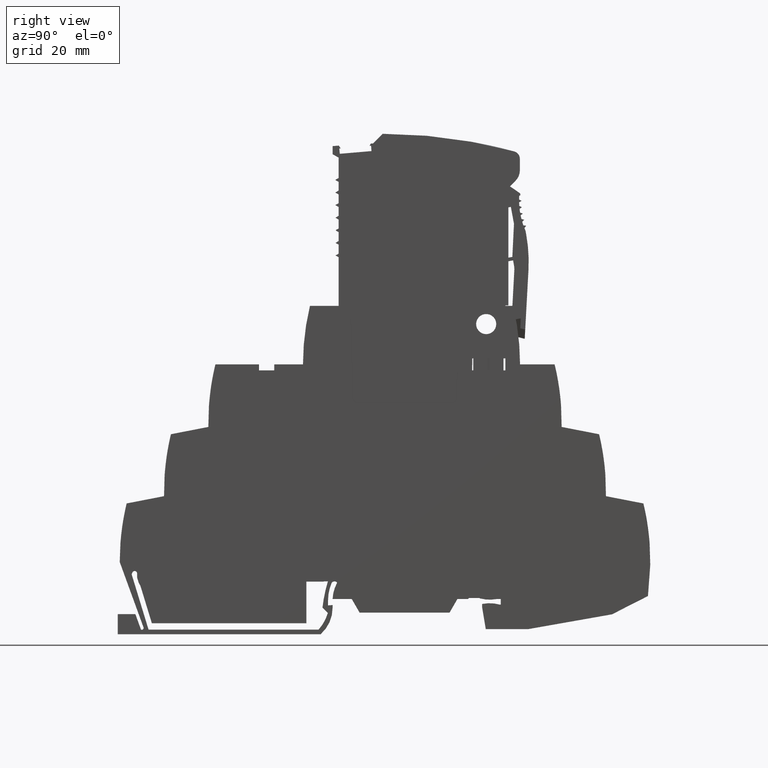
[diagram: clean part render]
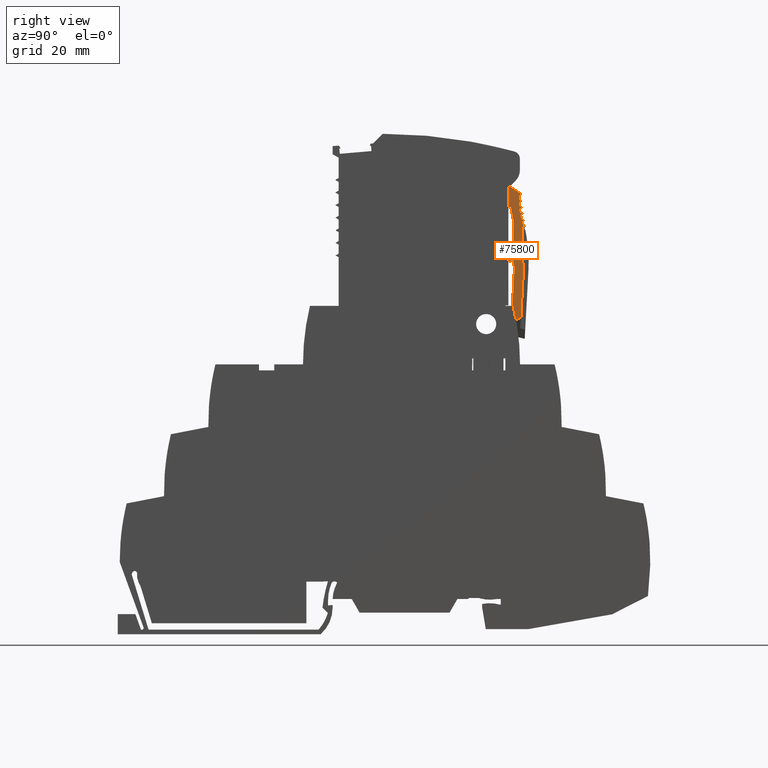
[diagram: same view with one face highlighted and labeled with its STEP entity id]
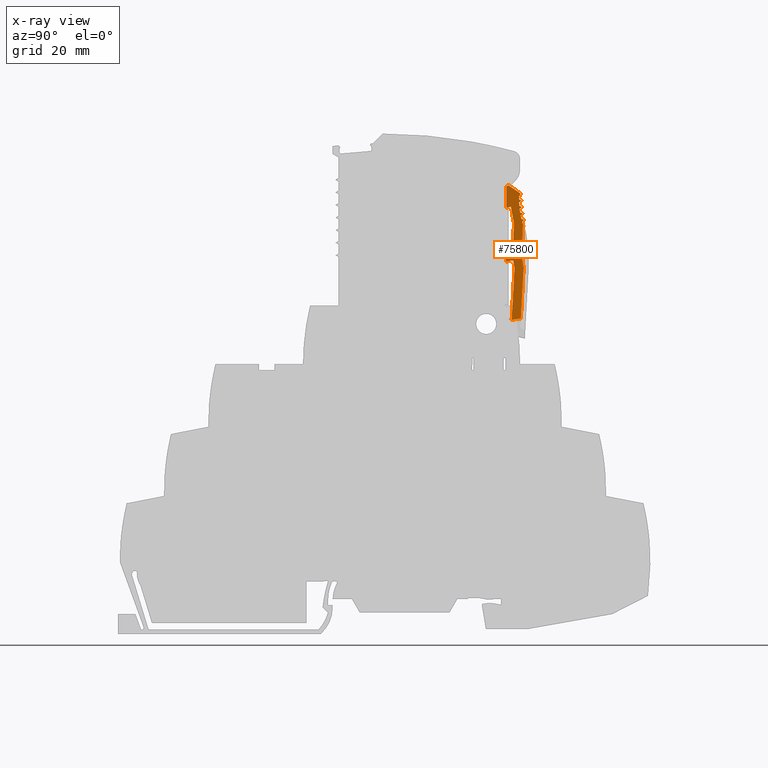
[diagram: x-ray of the same camera — body ghosted, the highlighted face saturated]
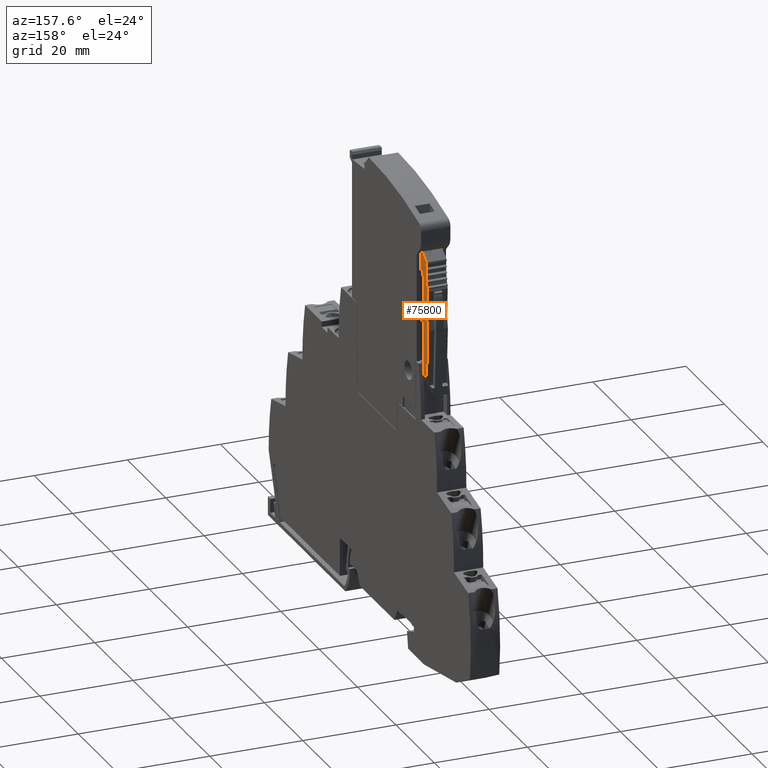
[diagram: same view with one face highlighted and labeled with its STEP entity id]
A machine part, right view. The second image highlights one B-rep face of the part: STEP entity #75800.
The next image is the same camera in x-ray: the body ghosted, the highlighted face saturated — about 0% of this face is hidden behind the body in this view.
A second angle (auxiliary view) of the same face is appended — the face is thin or edge-on in the first view.
In plain terms, the highlighted planar face has unit normal (1, -0, 0).
Its self-contained STEP definition (entity closure, byte-faithful):
#4050=CARTESIAN_POINT('',(1.62298429946844,82.1011467988574,
5.20000083678018));
#4060=VERTEX_POINT('',#4050);
#4090=CARTESIAN_POINT('',(1.09429344283373,84.0300029308981,
5.20000083316418));
#4100=DIRECTION('',(2.8134761309659E-9,-1.10352373928041E-9,-1.));
#4110=DIRECTION('',(-0.999999999999995,9.92840027722557E-8,
-2.81347624052814E-9));
#4120=AXIS2_PLACEMENT_3D('',#4090,#4100,#4110);
#4130=CIRCLE('',#4120,2.);
#4140=CARTESIAN_POINT('',(1.12243020213924,82.0302008598631,
5.20000083416124));
#4150=VERTEX_POINT('',#4140);
#4160=EDGE_CURVE('',#4060,#4150,#4130,.T.);
#5610=CARTESIAN_POINT('',(0.997363683565904,67.6991603742551,
5.20000084049094));
#5620=VERTEX_POINT('',#5610);
#5650=CARTESIAN_POINT('',(0.997363683566063,67.6991603742737,
5.20000084049094));
#5660=DIRECTION('',(-0.00872663477859719,-0.999961922197761,
4.41660643497786E-10));
#5670=VECTOR('',#5660,1.);
#5680=LINE('',#5650,#5670);
#5690=CARTESIAN_POINT('',(0.991140705468147,66.9860858273874,
5.20000084080589));
#5700=VERTEX_POINT('',#5690);
#5710=EDGE_CURVE('',#5620,#5700,#5680,.T.);
#5820=CARTESIAN_POINT('',(0.406555339478865,0.,5.20000087039215));
#5830=DIRECTION('',(-0.00872663477859642,-0.999961922197761,
4.41660905764474E-10));
#5840=VECTOR('',#5830,1.);
#5850=LINE('',#5820,#5840);
#5860=CARTESIAN_POINT('',(1.0847076261546,77.7076709787713,
5.20000083607041));
#5870=VERTEX_POINT('',#5860);
#5880=EDGE_CURVE('',#4150,#5870,#5850,.T.);
#73440=CARTESIAN_POINT('',(3.34118784050877,60.6443424671896,
5.20000084961082));
#73450=DIRECTION('',(-2.49602655445891E-9,4.63460466040404E-10,1.));
#73460=DIRECTION('',(0.983254907564019,0.182235525491798,
2.36977139750829E-9));
#73470=AXIS2_PLACEMENT_3D('',#73440,#73450,#73460);
#73480=PLANE('',#73470);
#73490=CARTESIAN_POINT('',(-1.04015361656124,0.,5.20000086678113));
#73500=DIRECTION('',(-0.0490775910702315,-0.998794968977489,
3.40403007864643E-10));
#73510=VECTOR('',#73500,1.);
#73520=LINE('',#73490,#73510);
#73530=CARTESIAN_POINT('',(2.62224487121297,74.5347337595474,
5.20000084137867));
#73540=VERTEX_POINT('',#73530);
#73550=CARTESIAN_POINT('',(2.298213449443,67.9402586274791,
5.20000084362616));
#73560=VERTEX_POINT('',#73550);
#73570=EDGE_CURVE('',#73540,#73560,#73520,.T.);
#73580=ORIENTED_EDGE('',*,*,#73570,.T.);
#73590=CARTESIAN_POINT('',(16.4364412404051,0.,5.20000091040318));
#73600=DIRECTION('',(-0.182235525491783,0.983254907564022,
-9.10564498801669E-10));
#73610=VECTOR('',#73600,1.);
#73620=LINE('',#73590,#73610);
#73630=CARTESIAN_POINT('',(2.00264408453896,77.8778004452756,
5.20000083828275));
#73640=VERTEX_POINT('',#73630);
#73650=EDGE_CURVE('',#73540,#73640,#73620,.T.);
#73660=ORIENTED_EDGE('',*,*,#73650,.F.);
#73670=CARTESIAN_POINT('',(1.51101663075709,77.7866826825296,
5.20000083709784));
#73680=DIRECTION('',(-0.983254907564069,-0.18223552549153,
-2.36977159809775E-9));
#73690=VECTOR('',#73680,1.);
#73700=LINE('',#73670,#73690);
#73710=EDGE_CURVE('',#73640,#5870,#73700,.T.);
#73720=ORIENTED_EDGE('',*,*,#73710,.F.);
#73730=ORIENTED_EDGE('',*,*,#5880,.T.);
#73740=ORIENTED_EDGE('',*,*,#4160,.T.);
#73750=CARTESIAN_POINT('',(0.,83.2165930031065,5.20000083080978));
#73760=DIRECTION('',(-0.824126188621771,0.566406236925188,
-2.31954783158628E-9));
#73770=VECTOR('',#73760,1.);
#73780=LINE('',#73750,#73770);
#73790=CARTESIAN_POINT('',(3.84168019135636,80.5762793585478,
5.2000008416224));
#73800=VERTEX_POINT('',#73790);
#73810=EDGE_CURVE('',#73800,#4060,#73780,.T.);
#73820=ORIENTED_EDGE('',*,*,#73810,.T.);
#73830=CARTESIAN_POINT('',(3.88166401765275,80.36054593707,
5.20000084182218));
#73840=DIRECTION('',(-0.182235525491785,0.983254907564022,
-9.10559624090617E-10));
#73850=VECTOR('',#73840,1.);
#73860=LINE('',#73830,#73850);
#73870=CARTESIAN_POINT('',(3.90963086502836,80.2096503317425,
5.20000084196192));
#73880=VERTEX_POINT('',#73870);
#73890=EDGE_CURVE('',#73880,#73800,#73860,.T.);
#73900=ORIENTED_EDGE('',*,*,#73890,.T.);
#73910=CARTESIAN_POINT('',(3.66617811406198,80.0935293261637,
5.20000084140807));
#73920=DIRECTION('',(0.902585284350048,0.430511096807902,
2.05335606031267E-9));
#73930=VECTOR('',#73920,1.);
#73940=LINE('',#73910,#73930);
#73950=CARTESIAN_POINT('',(3.66617811406198,80.0935293261636,
5.20000084140807));
#73960=VERTEX_POINT('',#73950);
#73970=EDGE_CURVE('',#73960,#73880,#73940,.T.);
#73980=ORIENTED_EDGE('',*,*,#73970,.T.);
#73990=CARTESIAN_POINT('',(18.6397237342521,79.2030622801326,
5.20000087919514));
#74000=DIRECTION('',(2.49602655487909E-9,-4.63460466044779E-10,-1.));
#74010=DIRECTION('',(-0.999945777116274,0.01041358859049,
-2.50071749974278E-9));
#74020=AXIS2_PLACEMENT_3D('',#73990,#74000,#74010);
#74030=CIRCLE('',#74020,14.9999999999994);
#74040=CARTESIAN_POINT('',(3.64053707750857,79.35926610899,
5.20000084168438));
#74050=VERTEX_POINT('',#74040);
#74060=EDGE_CURVE('',#74050,#73960,#74030,.T.);
#74070=ORIENTED_EDGE('',*,*,#74060,.T.);
#74080=CARTESIAN_POINT('',(3.98952582121989,79.161817777904,
5.20000084264697));
#74090=DIRECTION('',(-0.870355695939792,0.492423560103658,
-2.40064923672015E-9));
#74100=VECTOR('',#74090,1.);
#74110=LINE('',#74080,#74100);
#74120=CARTESIAN_POINT('',(4.14027584982198,79.0765275154099,
5.20000084306278));
#74130=VERTEX_POINT('',#74120);
#74140=EDGE_CURVE('',#74130,#74050,#74110,.T.);
#74150=ORIENTED_EDGE('',*,*,#74140,.T.);
#74160=CARTESIAN_POINT('',(3.64554765899444,78.7851103401204,
5.20000084196298));
#74170=DIRECTION('',(0.861629160441726,0.507538362960364,
1.91542564563568E-9));
#74180=VECTOR('',#74170,1.);
#74190=LINE('',#74160,#74180);
#74200=CARTESIAN_POINT('',(3.64554765899443,78.7851103401204,
5.20000084196298));
#74210=VERTEX_POINT('',#74200);
#74220=EDGE_CURVE('',#74210,#74130,#74190,.T.);
#74230=ORIENTED_EDGE('',*,*,#74220,.T.);
#74240=CARTESIAN_POINT('',(18.6397237342525,79.2030622801311,
5.20000087919514));
#74250=DIRECTION('',(2.4960265335364E-9,-4.63460467651527E-10,-1.));
#74260=DIRECTION('',(-0.997048285590744,-0.0767770551698732,
-2.45307584615754E-9));
#74270=AXIS2_PLACEMENT_3D('',#74240,#74250,#74260);
#74280=CIRCLE('',#74270,15.);
#74290=CARTESIAN_POINT('',(3.68399945039134,78.0514064525829,
5.200000842399));
#74300=VERTEX_POINT('',#74290);
#74310=EDGE_CURVE('',#74300,#74210,#74280,.T.);
#74320=ORIENTED_EDGE('',*,*,#74310,.T.);
#74330=CARTESIAN_POINT('',(4.04886894251995,77.8851258451769,
5.20000084338679));
#74340=DIRECTION('',(-0.909961270876338,0.414693242656689,
-2.46347942499714E-9));
#74350=VECTOR('',#74340,1.);
#74360=LINE('',#74330,#74350);
#74370=CARTESIAN_POINT('',(4.20647885792507,77.8132988685944,
5.20000084381348));
#74380=VERTEX_POINT('',#74370);
#74390=EDGE_CURVE('',#74380,#74300,#74360,.T.);
#74400=ORIENTED_EDGE('',*,*,#74390,.T.);
#74410=CARTESIAN_POINT('',(3.73903193759055,77.4798722207096,
5.20000084280125));
#74420=DIRECTION('',(0.814115518356347,0.580702955710901,
1.76292227192972E-9));
#74430=VECTOR('',#74420,1.);
#74440=LINE('',#74410,#74430);
#74450=CARTESIAN_POINT('',(3.73903193759053,77.4798722207098,
5.20000084280125));
#74460=VERTEX_POINT('',#74450);
#74470=EDGE_CURVE('',#74460,#74380,#74440,.T.);
#74480=ORIENTED_EDGE('',*,*,#74470,.T.);
#74490=CARTESIAN_POINT('',(18.6397237342521,79.2030622801326,
5.20000083666593));
#74500=DIRECTION('',(2.49602656770005E-9,-4.63460463847555E-10,-1.));
#74510=DIRECTION('',(-0.986562654577628,-0.163383379181432,
-2.38676485982604E-9));
#74520=AXIS2_PLACEMENT_3D('',#74490,#74500,#74510);
#74530=CIRCLE('',#74520,14.9999999999997);
#74540=CARTESIAN_POINT('',(3.841283915588,76.7523115924117,
5.20000084339367));
#74550=VERTEX_POINT('',#74540);
#74560=EDGE_CURVE('',#74550,#74460,#74530,.T.);
#74570=ORIENTED_EDGE('',*,*,#74560,.T.);
#74580=CARTESIAN_POINT('',(4.21925727898594,76.6184642045099,
5.20000084439913));
#74590=DIRECTION('',(-0.942641491092059,0.333806859234109,
-2.50756577215206E-9));
#74600=VECTOR('',#74590,1.);
#74610=LINE('',#74580,#74600);
#74620=CARTESIAN_POINT('',(4.38252757457421,76.5606471605001,
5.20000084483345));
#74630=VERTEX_POINT('',#74620);
#74640=EDGE_CURVE('',#74630,#74550,#74610,.T.);
#74650=ORIENTED_EDGE('',*,*,#74640,.T.);
#74660=CARTESIAN_POINT('',(3.94591947804336,76.1877486181367,
5.20000084391649));
#74670=DIRECTION('',(0.76040596560031,0.649448048329857,
1.5969987425414E-9));
#74680=VECTOR('',#74670,1.);
#74690=LINE('',#74660,#74680);
#74700=CARTESIAN_POINT('',(3.94591947804338,76.1877486181366,
5.20000084391649));
#74710=VERTEX_POINT('',#74700);
#74720=EDGE_CURVE('',#74710,#74630,#74690,.T.);
#74730=ORIENTED_EDGE('',*,*,#74720,.T.);
#74740=CARTESIAN_POINT('',(18.6397237342525,79.2030622801311,
5.20000087919514));
#74750=DIRECTION('',(2.49602653633126E-9,-4.63460470695917E-10,-1.));
#74760=DIRECTION('',(-0.968568686060409,-0.248746257023522,
-2.30228908530232E-9));
#74770=AXIS2_PLACEMENT_3D('',#74740,#74750,#74760);
#74780=CIRCLE('',#74770,15.);
#74790=CARTESIAN_POINT('',(4.11119344334635,75.4718684247783,
5.2000008446608));
#74800=VERTEX_POINT('',#74790);
#74810=EDGE_CURVE('',#74800,#74710,#74780,.T.);
#74820=ORIENTED_EDGE('',*,*,#74810,.T.);
#74830=CARTESIAN_POINT('',(4.49939407248983,75.3714729158237,
5.20000084567629));
#74840=DIRECTION('',(-0.968147640378101,0.250380004054469,
-2.53256272878335E-9));
#74850=VECTOR('',#74840,1.);
#74860=LINE('',#74830,#74850);
#74870=CARTESIAN_POINT('',(4.66708216272638,75.3281058270016,
5.20000084611494));
#74880=VERTEX_POINT('',#74870);
#74890=EDGE_CURVE('',#74880,#74800,#74860,.T.);
#74900=ORIENTED_EDGE('',*,*,#74890,.T.);
#74910=CARTESIAN_POINT('',(4.2646357412475,74.9185733732299,
5.20000084530023));
#74920=DIRECTION('',(0.700909264300222,0.713250449153817,
1.41892339168496E-9));
#74930=VECTOR('',#74920,1.);
#74940=LINE('',#74910,#74930);
#74950=CARTESIAN_POINT('',(4.26463574124749,74.9185733732299,
5.20000084530023));
#74960=VERTEX_POINT('',#74950);
#74970=EDGE_CURVE('',#74960,#74880,#74940,.T.);
#74980=ORIENTED_EDGE('',*,*,#74970,.T.);
#74990=CARTESIAN_POINT('',(18.6397237342521,79.2030622801326,
5.20000087919514));
#75000=DIRECTION('',(2.49602642510436E-9,-4.63460491132752E-10,-1.));
#75010=DIRECTION('',(-0.9550556540657,-0.296426546782061,
-2.24646215703692E-9));
#75020=AXIS2_PLACEMENT_3D('',#74990,#75000,#75010);
#75030=CIRCLE('',#75020,14.9999999999999);
#75040=CARTESIAN_POINT('',(4.41928562035126,74.4303125644327,
5.20000084591253));
#75050=VERTEX_POINT('',#75040);
#75060=EDGE_CURVE('',#75050,#74960,#75030,.T.);
#75070=ORIENTED_EDGE('',*,*,#75060,.T.);
#75080=CARTESIAN_POINT('',(4.14963916957343,68.9426447191201,
5.2000008477828));
#75090=DIRECTION('',(0.0490775910698832,0.998794968977506,
-3.40403071546834E-10));
#75100=VECTOR('',#75090,1.);
#75110=LINE('',#75080,#75100);
#75120=CARTESIAN_POINT('',(4.11069182692029,68.1500139267587,
5.20000084805294));
#75130=VERTEX_POINT('',#75120);
#75140=EDGE_CURVE('',#75130,#75050,#75110,.T.);
#75150=ORIENTED_EDGE('',*,*,#75140,.T.);
#75160=CARTESIAN_POINT('',(4.38025232671691,66.6955956205876,
5.20000084939984));
#75170=DIRECTION('',(-0.182235525491797,0.98325490756402,
-9.10563785846744E-10));
#75180=VECTOR('',#75170,1.);
#75190=LINE('',#75160,#75180);
#75200=CARTESIAN_POINT('',(4.52815290353836,65.8975955182563,
5.20000085013884));
#75210=VERTEX_POINT('',#75200);
#75220=EDGE_CURVE('',#75210,#75130,#75190,.T.);
#75230=ORIENTED_EDGE('',*,*,#75220,.T.);
#75240=CARTESIAN_POINT('',(3.97593149447206,55.7414444708252,
5.20000085346746));
#75250=DIRECTION('',(0.0542929018088864,0.998525052671775,
-3.27260358067731E-10));
#75260=VECTOR('',#75250,1.);
#75270=LINE('',#75240,#75260);
#75280=CARTESIAN_POINT('',(3.97593149447209,55.7414444708256,
5.20000085346746));
#75290=VERTEX_POINT('',#75280);
#75300=EDGE_CURVE('',#75290,#75210,#75270,.T.);
#75310=ORIENTED_EDGE('',*,*,#75300,.T.);
#75320=CARTESIAN_POINT('',(2.15492151554043,55.4039402205199,
5.20000084907859));
#75330=DIRECTION('',(0.98325490756402,0.182235525491795,
2.36977157347326E-9));
#75340=VECTOR('',#75330,1.);
#75350=LINE('',#75320,#75340);
#75360=CARTESIAN_POINT('',(2.15492151554043,55.4039402205198,
5.20000084907859));
#75370=VERTEX_POINT('',#75360);
#75380=EDGE_CURVE('',#75370,#75290,#75350,.T.);
#75390=ORIENTED_EDGE('',*,*,#75380,.T.);
#75400=CARTESIAN_POINT('',(2.68674421863739,65.1849295381974,
5.20000084587293));
#75410=DIRECTION('',(-0.0542929018092441,-0.998525052671755,
3.27260329266719E-10));
#75420=VECTOR('',#75410,1.);
#75430=LINE('',#75400,#75420);
#75440=CARTESIAN_POINT('',(2.68674421863741,65.1849295381978,
5.20000084587293));
#75450=VERTEX_POINT('',#75440);
#75460=EDGE_CURVE('',#75450,#75370,#75430,.T.);
#75470=ORIENTED_EDGE('',*,*,#75460,.T.);
#75480=CARTESIAN_POINT('',(-2.30588104472139,65.4563940472439,
5.20000083328539));
#75490=DIRECTION('',(2.49602655822323E-9,-4.63460465342728E-10,-1.));
#75500=DIRECTION('',(0.983254907563428,0.182235525494988,
2.36977140133376E-9));
#75510=AXIS2_PLACEMENT_3D('',#75480,#75490,#75500);
#75520=CIRCLE('',#75510,5.00000000000001);
#75530=CARTESIAN_POINT('',(2.61039349309799,66.3675716747101,
5.20000084513425));
#75540=VERTEX_POINT('',#75530);
#75550=EDGE_CURVE('',#75540,#75450,#75520,.T.);
#75560=ORIENTED_EDGE('',*,*,#75550,.T.);
#75570=CARTESIAN_POINT('',(2.53690839174101,66.7640618011393,
5.20000084476707));
#75580=DIRECTION('',(0.182235525491801,-0.983254907564019,
9.10564549651679E-10));
#75590=VECTOR('',#75580,1.);
#75600=LINE('',#75570,#75590);
#75610=CARTESIAN_POINT('',(2.44579062899518,67.2556892549209,
5.20000084431179));
#75620=VERTEX_POINT('',#75610);
#75630=EDGE_CURVE('',#75620,#75540,#75600,.T.);
#75640=ORIENTED_EDGE('',*,*,#75630,.T.);
#75650=CARTESIAN_POINT('',(0.991140705468137,66.9860858273866,
5.20000084080589));
#75660=DIRECTION('',(0.983254907564017,0.182235525491812,
2.36977105734268E-9));
#75670=VECTOR('',#75660,1.);
#75680=LINE('',#75650,#75670);
#75690=EDGE_CURVE('',#5700,#75620,#75680,.T.);
#75700=ORIENTED_EDGE('',*,*,#75690,.T.);
#75710=ORIENTED_EDGE('',*,*,#5710,.T.);
#75720=CARTESIAN_POINT('',(0.,67.5143099417145,5.20000083808717));
#75730=DIRECTION('',(-0.98325490756426,-0.182235525490498,
-2.36977139300709E-9));
#75740=VECTOR('',#75730,1.);
#75750=LINE('',#75720,#75740);
#75760=EDGE_CURVE('',#73560,#5620,#75750,.T.);
#75770=ORIENTED_EDGE('',*,*,#75760,.T.);
#75780=EDGE_LOOP('',(#75770,#75710,#75700,#75640,#75560,#75470,#75390,
#75310,#75230,#75150,#75070,#74980,#74900,#74820,#74730,#74650,#74570,
#74480,#74400,#74320,#74230,#74150,#74070,#73980,#73900,#73820,#73740,
#73730,#73720,#73660,#73580));
#75790=FACE_OUTER_BOUND('',#75780,.T.);
#75800=ADVANCED_FACE('',(#75790),#73480,.T.);